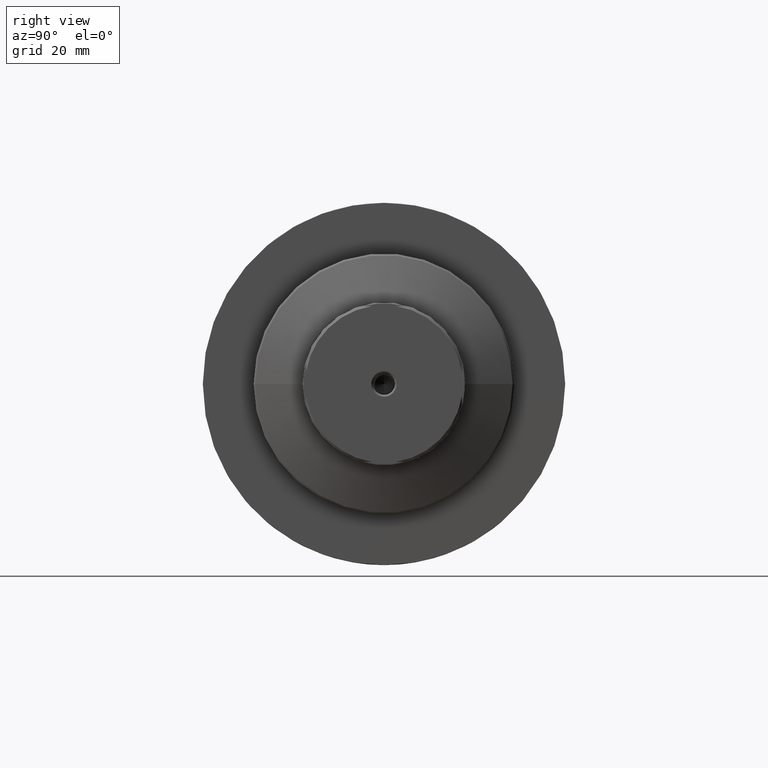
[diagram: clean part render]
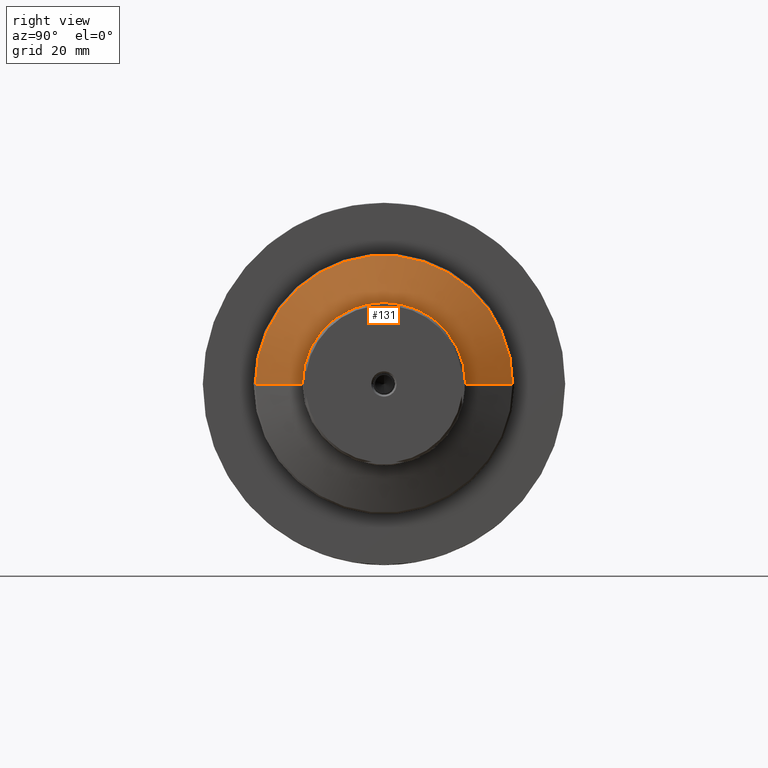
[diagram: same view with one face highlighted and labeled with its STEP entity id]
A machine part, right view. The second image highlights one B-rep face of the part: STEP entity #131.
In plain terms, the highlighted conical surface has half-angle 69.745 deg.
Its self-contained STEP definition (entity closure, byte-faithful):
#108 = LINE ( 'NONE', #138, #596 ) ;
#117 = DIRECTION ( 'NONE',  ( -2.443272501375785946E-16, 1.000000000000000000, 0.000000000000000000 ) ) ;
#131 = ADVANCED_FACE ( 'NONE', ( #366 ), #577, .T. ) ;
#138 = CARTESIAN_POINT ( 'NONE',  ( -13.10000000000066755, -35.49999999999997158, 0.000000000000000000 ) ) ;
#173 = DIRECTION ( 'NONE',  ( 2.443272501375785946E-16, -1.000000000000000000, 0.000000000000000000 ) ) ;
#201 = CARTESIAN_POINT ( 'NONE',  ( -8.302816901408885286, 5.462247379445728618E-15, 0.000000000000000000 ) ) ;
#226 = CARTESIAN_POINT ( 'NONE',  ( -13.10000000000066755, -35.49999999999997158, 0.000000000000000000 ) ) ;
#243 = AXIS2_PLACEMENT_3D ( 'NONE', #1841, #1369, #117 ) ;
#318 = EDGE_CURVE ( 'NONE', #664, #717, #652, .T. ) ;
#366 = FACE_OUTER_BOUND ( 'NONE', #745, .T. ) ;
#489 = DIRECTION ( 'NONE',  ( -1.000000000000000000, -2.485414848852932351E-16, 0.000000000000000000 ) ) ;
#516 = VERTEX_POINT ( 'NONE', #635 ) ;
#517 = CARTESIAN_POINT ( 'NONE',  ( -8.302816901408885286, 2.755455298081545172E-15, 22.50000000000000355 ) ) ;
#577 = CONICAL_SURFACE ( 'NONE', #1415, 35.49999999999997868, 1.217283882111194204 ) ;
#596 = VECTOR ( 'NONE', #1564, 1000.000000000000000 ) ;
#634 = DIRECTION ( 'NONE',  ( -1.000000000000000000, -2.485414848852932351E-16, 0.000000000000000000 ) ) ;
#635 = CARTESIAN_POINT ( 'NONE',  ( -8.302816901408890615, 22.50000000000001066, 3.551475717527323241E-15 ) ) ;
#652 = CIRCLE ( 'NONE', #243, 35.49999999999997868 ) ;
#664 = VERTEX_POINT ( 'NONE', #885 ) ;
#673 = LINE ( 'NONE', #1399, #1167 ) ;
#690 = DIRECTION ( 'NONE',  ( -0.3461951801534135509, 0.9381625111027117603, 1.148917716301979285E-16 ) ) ;
#717 = VERTEX_POINT ( 'NONE', #226 ) ;
#745 = EDGE_LOOP ( 'NONE', ( #1480, #1868, #1657, #1965, #1095 ) ) ;
#809 = CIRCLE ( 'NONE', #1496, 22.50000000000000355 ) ;
#856 = CARTESIAN_POINT ( 'NONE',  ( -13.10000000000067644, 4.269948368855093225E-15, 0.000000000000000000 ) ) ;
#885 = CARTESIAN_POINT ( 'NONE',  ( -13.10000000000068532, 35.49999999999998579, 4.347496136973100915E-15 ) ) ;
#890 = AXIS2_PLACEMENT_3D ( 'NONE', #2225, #634, #1362 ) ;
#925 = VERTEX_POINT ( 'NONE', #1629 ) ;
#1057 = DIRECTION ( 'NONE',  ( -1.000000000000000000, -2.485414848852932351E-16, 0.000000000000000000 ) ) ;
#1095 = ORIENTED_EDGE ( 'NONE', *, *, #1416, .F. ) ;
#1154 = CIRCLE ( 'NONE', #890, 22.50000000000000355 ) ;
#1167 = VECTOR ( 'NONE', #690, 999.9999999999998863 ) ;
#1326 = VERTEX_POINT ( 'NONE', #517 ) ;
#1362 = DIRECTION ( 'NONE',  ( 2.312964634635742464E-16, -1.000000000000000000, 0.000000000000000000 ) ) ;
#1369 = DIRECTION ( 'NONE',  ( 1.000000000000000000, 2.485414848852932351E-16, -0.000000000000000000 ) ) ;
#1399 = CARTESIAN_POINT ( 'NONE',  ( -13.10000000000068532, 35.49999999999998579, 4.347496136973100915E-15 ) ) ;
#1415 = AXIS2_PLACEMENT_3D ( 'NONE', #856, #1057, #173 ) ;
#1416 = EDGE_CURVE ( 'NONE', #925, #717, #108, .T. ) ;
#1429 = EDGE_CURVE ( 'NONE', #516, #664, #673, .T. ) ;
#1480 = ORIENTED_EDGE ( 'NONE', *, *, #2054, .T. ) ;
#1496 = AXIS2_PLACEMENT_3D ( 'NONE', #201, #489, #2116 ) ;
#1564 = DIRECTION ( 'NONE',  ( -0.3461951801534130513, -0.9381625111027118713, 0.000000000000000000 ) ) ;
#1629 = CARTESIAN_POINT ( 'NONE',  ( -8.302816901408881733, -22.49999999999999645, 0.000000000000000000 ) ) ;
#1657 = ORIENTED_EDGE ( 'NONE', *, *, #1429, .T. ) ;
#1841 = CARTESIAN_POINT ( 'NONE',  ( -13.10000000000067644, 4.269948368855093225E-15, 0.000000000000000000 ) ) ;
#1868 = ORIENTED_EDGE ( 'NONE', *, *, #1972, .T. ) ;
#1965 = ORIENTED_EDGE ( 'NONE', *, *, #318, .T. ) ;
#1972 = EDGE_CURVE ( 'NONE', #1326, #516, #1154, .T. ) ;
#2054 = EDGE_CURVE ( 'NONE', #925, #1326, #809, .T. ) ;
#2116 = DIRECTION ( 'NONE',  ( 2.312964634635742464E-16, -1.000000000000000000, 0.000000000000000000 ) ) ;
#2225 = CARTESIAN_POINT ( 'NONE',  ( -8.302816901408885286, 5.462247379445728618E-15, 0.000000000000000000 ) ) ;